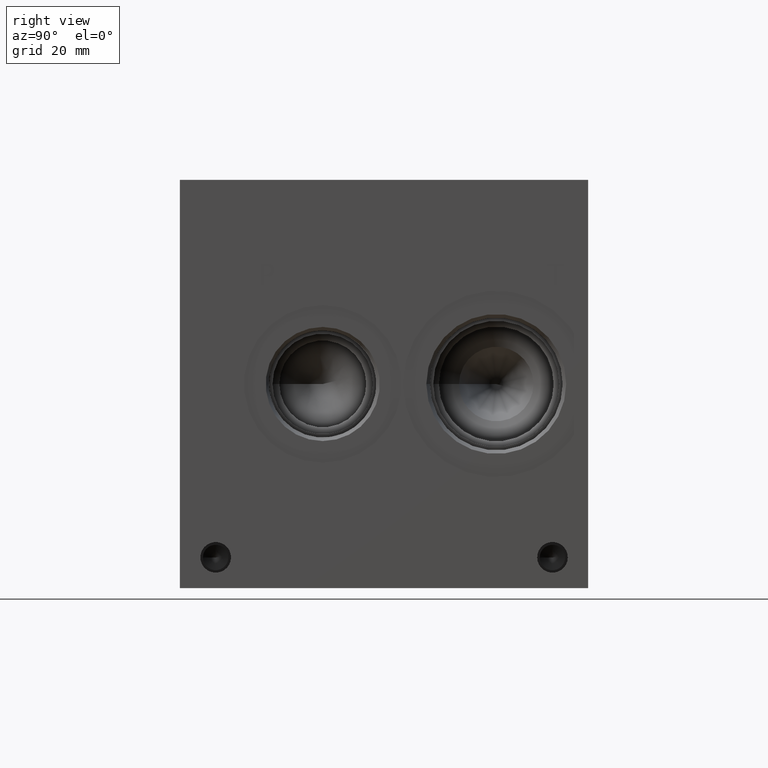
[diagram: clean part render]
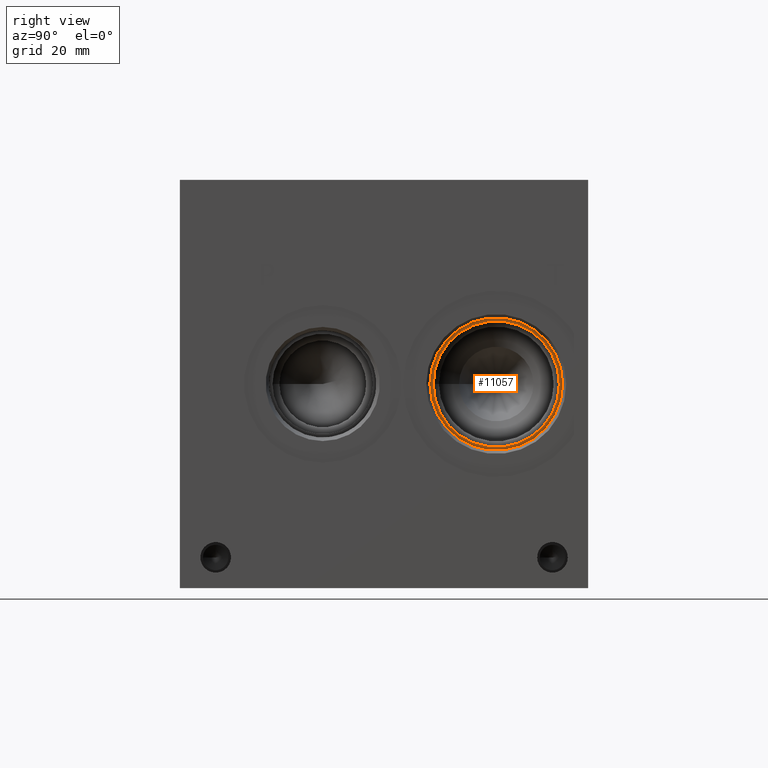
[diagram: same view with one face highlighted and labeled with its STEP entity id]
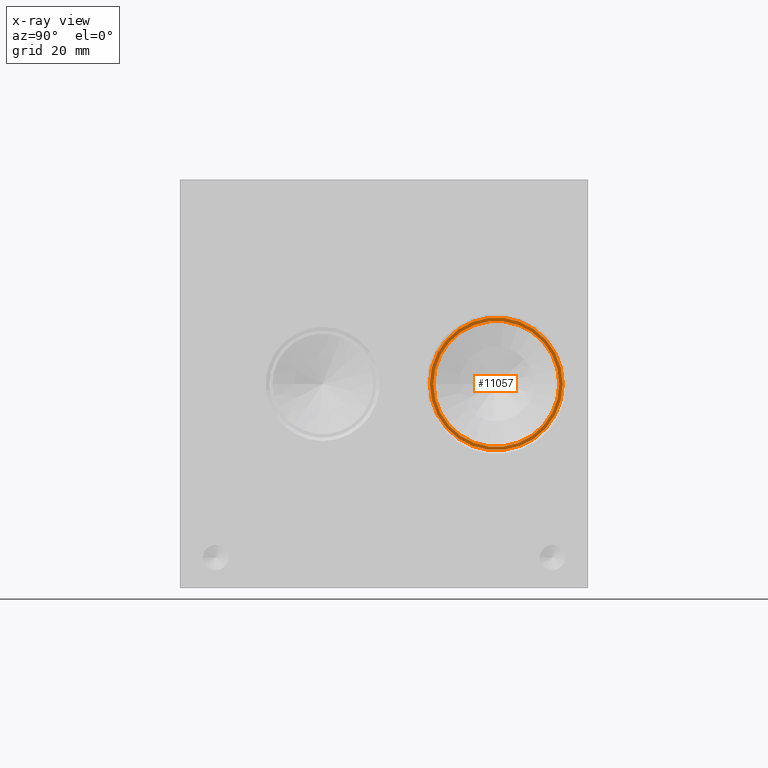
[diagram: x-ray of the same camera — body ghosted, the highlighted face saturated]
A machine part, right view. The second image highlights one B-rep face of the part: STEP entity #11057.
The next image is the same camera in x-ray: the body ghosted, the highlighted face saturated — about 0% of this face is hidden behind the body in this view.
In plain terms, the highlighted planar face has unit normal (1, 0, 0).
Its self-contained STEP definition (entity closure, byte-faithful):
#305=CIRCLE('',#11682,20.6375);
#306=CIRCLE('',#11683,20.6375);
#307=CIRCLE('',#11684,19.6088);
#395=FACE_BOUND('',#2032,.T.);
#1397=FACE_OUTER_BOUND('',#2031,.T.);
#2031=EDGE_LOOP('',(#9618,#9619));
#2032=EDGE_LOOP('',(#9620));
#5135=VERTEX_POINT('',#19002);
#5136=VERTEX_POINT('',#19003);
#5137=VERTEX_POINT('',#19006);
#6652=EDGE_CURVE('',#5135,#5136,#305,.T.);
#6653=EDGE_CURVE('',#5136,#5135,#306,.T.);
#6654=EDGE_CURVE('',#5137,#5137,#307,.T.);
#9618=ORIENTED_EDGE('',*,*,#6652,.T.);
#9619=ORIENTED_EDGE('',*,*,#6653,.T.);
#9620=ORIENTED_EDGE('',*,*,#6654,.F.);
#10075=PLANE('',#11681);
#11057=ADVANCED_FACE('',(#1397,#395),#10075,.T.);
#11681=AXIS2_PLACEMENT_3D('',#19001,#13906,#13907);
#11682=AXIS2_PLACEMENT_3D('',#19004,#13908,#13909);
#11683=AXIS2_PLACEMENT_3D('',#19005,#13910,#13911);
#11684=AXIS2_PLACEMENT_3D('',#19007,#13912,#13913);
#13906=DIRECTION('center_axis',(1.,0.,0.));
#13907=DIRECTION('ref_axis',(0.,1.,0.));
#13908=DIRECTION('center_axis',(1.,0.,0.));
#13909=DIRECTION('ref_axis',(0.,1.,0.));
#13910=DIRECTION('center_axis',(1.,0.,0.));
#13911=DIRECTION('ref_axis',(0.,1.,0.));
#13912=DIRECTION('center_axis',(1.,0.,0.));
#13913=DIRECTION('ref_axis',(0.,1.,0.));
#19001=CARTESIAN_POINT('Origin',(119.8626,98.425,63.5));
#19002=CARTESIAN_POINT('',(119.8626,119.0625,63.5));
#19003=CARTESIAN_POINT('',(119.8626,77.7875,63.5));
#19004=CARTESIAN_POINT('Origin',(119.8626,98.425,63.5));
#19005=CARTESIAN_POINT('Origin',(119.8626,98.425,63.5));
#19006=CARTESIAN_POINT('',(119.8626,78.8162,63.5));
#19007=CARTESIAN_POINT('Origin',(119.8626,98.425,63.5));